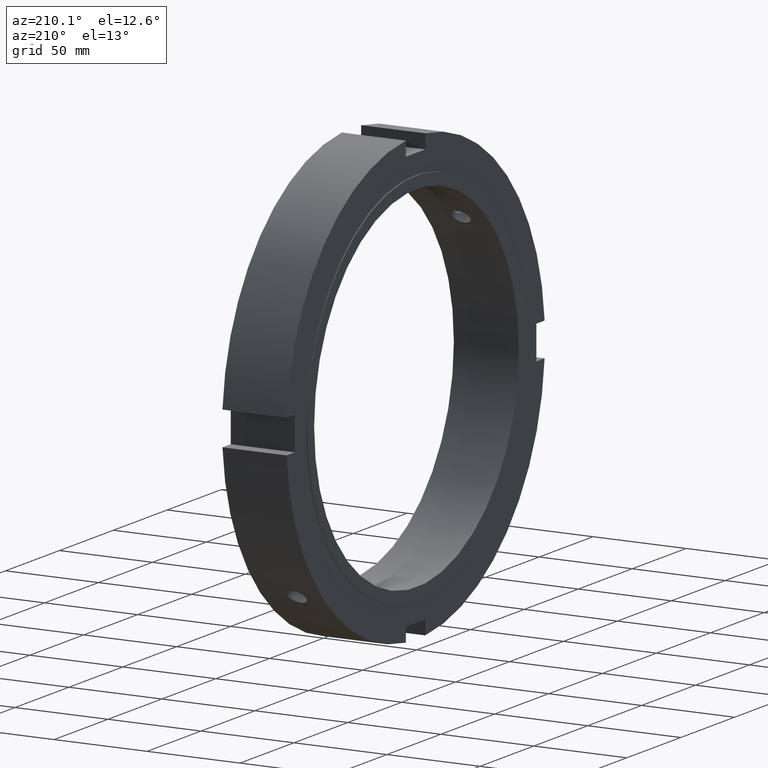
[diagram: clean part render]
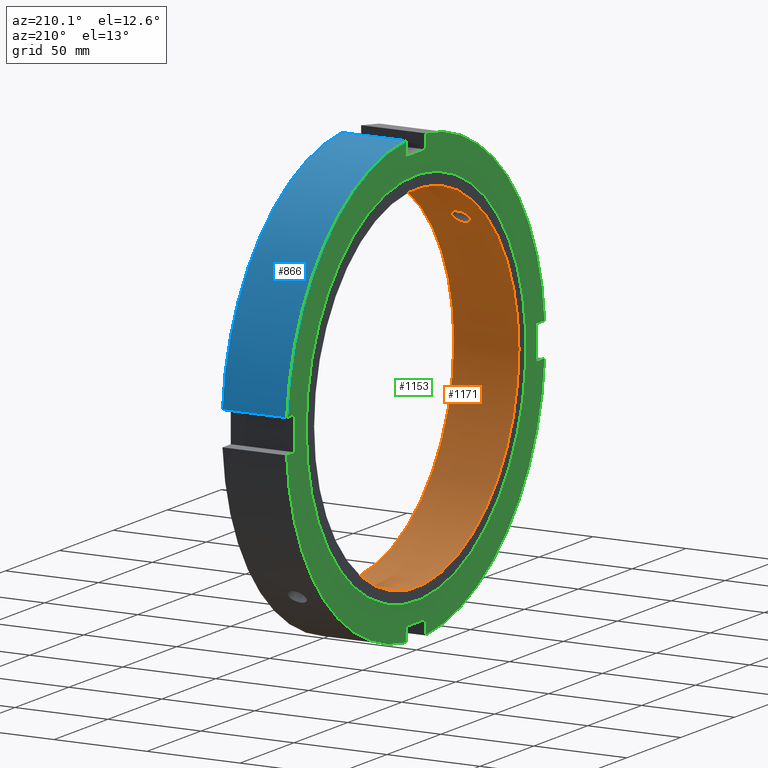
[diagram: same view with three faces highlighted in distinct colors, each labeled with its STEP entity id]
A machine part, auxiliary view with three faces highlighted in distinct colors.
Their STEP definitions:

[orange] entity #1171 — the highlighted cylindrical surface (bore or boss wall) has radius 95 mm, axis along (1, 0, 0).
#256=CARTESIAN_POINT('',(14.999999999999979,-70.483455965770062,63.695230866379255));
#257=VERTEX_POINT('',#256);
#258=CARTESIAN_POINT('',(14.999999999999979,-70.483455965770048,63.695230866379269));
#259=CARTESIAN_POINT('',(15.60280886897484,-70.483455965770048,63.695230866379269));
#260=CARTESIAN_POINT('',(16.245727713137242,-70.402735111982068,63.784912148055348));
#261=CARTESIAN_POINT('',(17.428318149963072,-70.072518583995603,64.147503990508682));
#262=CARTESIAN_POINT('',(17.967998441527296,-69.822793832356126,64.420177481466368));
#263=CARTESIAN_POINT('',(18.820226563994112,-69.241721275644636,65.044337493783232));
#264=CARTESIAN_POINT('',(19.189617973987897,-68.871577627804783,65.437417094174918));
#265=CARTESIAN_POINT('',(19.679507531872932,-68.051532852517468,66.289807944514266));
#266=CARTESIAN_POINT('',(19.799999999999983,-67.601394357834096,66.748894067609939));
#267=CARTESIAN_POINT('',(19.799999999999972,-66.748894067609839,67.601394357834167));
#268=CARTESIAN_POINT('',(19.679507531872925,-66.289807944514195,68.051532852517553));
#269=CARTESIAN_POINT('',(19.189617973987886,-65.437417094174819,68.871577627804882));
#270=CARTESIAN_POINT('',(18.820226563994108,-65.044337493783146,69.241721275644721));
#271=CARTESIAN_POINT('',(17.967998441527293,-64.420177481466283,69.822793832356197));
#272=CARTESIAN_POINT('',(17.428318149963069,-64.147503990508611,70.072518583995674));
#273=CARTESIAN_POINT('',(16.245727713137242,-63.784912148055277,70.402735111982139));
#274=CARTESIAN_POINT('',(15.60280886897484,-63.695230866379191,70.483455965770119));
#275=CARTESIAN_POINT('',(14.397191131025121,-63.695230866379191,70.483455965770119));
#276=CARTESIAN_POINT('',(13.754272286862717,-63.784912148055277,70.402735111982139));
#277=CARTESIAN_POINT('',(12.571681850036896,-64.147503990508611,70.072518583995674));
#278=CARTESIAN_POINT('',(12.032001558472667,-64.420177481466268,69.822793832356211));
#279=CARTESIAN_POINT('',(11.179773436005842,-65.044337493783132,69.241721275644736));
#280=CARTESIAN_POINT('',(10.810382026012073,-65.437417094174819,68.871577627804882));
#281=CARTESIAN_POINT('',(10.320492468127027,-66.289807944514195,68.051532852517539));
#282=CARTESIAN_POINT('',(10.199999999999982,-66.748894067609839,67.601394357834167));
#283=CARTESIAN_POINT('',(10.199999999999974,-67.601394357834096,66.748894067609939));
#284=CARTESIAN_POINT('',(10.320492468127023,-68.051532852517468,66.289807944514266));
#285=CARTESIAN_POINT('',(10.810382026012061,-68.871577627804783,65.437417094174904));
#286=CARTESIAN_POINT('',(11.179773436005844,-69.241721275644636,65.044337493783232));
#287=CARTESIAN_POINT('',(12.032001558472661,-69.822793832356126,64.420177481466368));
#288=CARTESIAN_POINT('',(12.571681850036882,-70.072518583995603,64.147503990508682));
#289=CARTESIAN_POINT('',(13.754272286862715,-70.402735111982068,63.784912148055348));
#290=CARTESIAN_POINT('',(14.397191131025115,-70.483455965770048,63.695230866379269));
#291=CARTESIAN_POINT('',(14.999999999999979,-70.483455965770048,63.695230866379269));
#292=B_SPLINE_CURVE_WITH_KNOTS('',3,(#258,#259,#260,#261,#262,#263,#264,#265,#266,#267,#268,#269,#270,#271,#272,#273,#274,#275,#276,#277,#278,#279,#280,#281,#282,#283,#284,#285,#286,#287,#288,#289,#290,#291),.UNSPECIFIED.,.T.,.U.,(4,2,2,2,2,2,2,2,2,2,2,2,2,2,2,2,4),(0.0,0.180842660692459,0.361685321384918,0.542527942239237,0.723370563093557,0.904213183947876,1.085055804802195,1.265898465494653,1.446741126187112,1.627583786879569,1.808426447572027,1.989269068426347,2.170111689280668,2.350954310134987,2.531796930989306,2.712639591681765,2.893482252374224),.UNSPECIFIED.);
#293=EDGE_CURVE('',#257,#257,#292,.T.);
#486=CARTESIAN_POINT('',(14.999999999999979,63.695230866379234,-70.483455965770091));
#487=VERTEX_POINT('',#486);
#488=CARTESIAN_POINT('',(14.999999999999979,63.695230866379227,-70.483455965770091));
#489=CARTESIAN_POINT('',(14.397191131025121,63.695230866379227,-70.483455965770091));
#490=CARTESIAN_POINT('',(13.754272286862728,63.784912148055291,-70.402735111982111));
#491=CARTESIAN_POINT('',(12.571681850036907,64.147503990508625,-70.072518583995645));
#492=CARTESIAN_POINT('',(12.032001558472668,64.420177481466283,-69.822793832356197));
#493=CARTESIAN_POINT('',(11.179773436005842,65.044337493783161,-69.241721275644721));
#494=CARTESIAN_POINT('',(10.810382026012078,65.437417094174833,-68.871577627804839));
#495=CARTESIAN_POINT('',(10.320492468127028,66.289807944514209,-68.051532852517511));
#496=CARTESIAN_POINT('',(10.199999999999982,66.748894067609882,-67.601394357834138));
#497=CARTESIAN_POINT('',(10.199999999999974,67.601394357834138,-66.748894067609896));
#498=CARTESIAN_POINT('',(10.320492468127023,68.051532852517511,-66.289807944514237));
#499=CARTESIAN_POINT('',(10.810382026012061,68.871577627804825,-65.437417094174876));
#500=CARTESIAN_POINT('',(11.179773436005844,69.241721275644679,-65.044337493783203));
#501=CARTESIAN_POINT('',(12.032001558472661,69.822793832356155,-64.420177481466339));
#502=CARTESIAN_POINT('',(12.57168185003688,70.072518583995631,-64.147503990508625));
#503=CARTESIAN_POINT('',(13.754272286862712,70.402735111982096,-63.784912148055298));
#504=CARTESIAN_POINT('',(14.397191131025115,70.483455965770091,-63.695230866379219));
#505=CARTESIAN_POINT('',(15.60280886897484,70.483455965770091,-63.695230866379219));
#506=CARTESIAN_POINT('',(16.245727713137242,70.402735111982096,-63.784912148055298));
#507=CARTESIAN_POINT('',(17.428318149963076,70.072518583995631,-64.147503990508625));
#508=CARTESIAN_POINT('',(17.967998441527296,69.822793832356155,-64.420177481466339));
#509=CARTESIAN_POINT('',(18.820226563994112,69.241721275644679,-65.044337493783203));
#510=CARTESIAN_POINT('',(19.189617973987897,68.871577627804825,-65.437417094174876));
#511=CARTESIAN_POINT('',(19.679507531872932,68.051532852517511,-66.289807944514237));
#512=CARTESIAN_POINT('',(19.799999999999983,67.601394357834138,-66.748894067609896));
#513=CARTESIAN_POINT('',(19.799999999999976,66.748894067609882,-67.601394357834153));
#514=CARTESIAN_POINT('',(19.679507531872925,66.289807944514209,-68.051532852517511));
#515=CARTESIAN_POINT('',(19.189617973987875,65.437417094174833,-68.871577627804839));
#516=CARTESIAN_POINT('',(18.820226563994112,65.044337493783161,-69.241721275644721));
#517=CARTESIAN_POINT('',(17.967998441527286,64.420177481466297,-69.822793832356197));
#518=CARTESIAN_POINT('',(17.428318149963054,64.147503990508625,-70.072518583995645));
#519=CARTESIAN_POINT('',(16.245727713137232,63.784912148055291,-70.402735111982111));
#520=CARTESIAN_POINT('',(15.602808868974838,63.695230866379227,-70.483455965770091));
#521=CARTESIAN_POINT('',(14.999999999999979,63.695230866379227,-70.483455965770091));
#522=B_SPLINE_CURVE_WITH_KNOTS('',3,(#488,#489,#490,#491,#492,#493,#494,#495,#496,#497,#498,#499,#500,#501,#502,#503,#504,#505,#506,#507,#508,#509,#510,#511,#512,#513,#514,#515,#516,#517,#518,#519,#520,#521),.UNSPECIFIED.,.T.,.U.,(4,2,2,2,2,2,2,2,2,2,2,2,2,2,2,2,4),(0.0,0.180842660692458,0.361685321384915,0.542527942239237,0.723370563093558,0.904213183947878,1.085055804802197,1.265898465494656,1.446741126187115,1.627583786879574,1.808426447572033,1.989269068426352,2.170111689280672,2.350954310134993,2.531796930989315,2.712639591681772,2.89348225237423),.UNSPECIFIED.);
#523=EDGE_CURVE('',#487,#487,#522,.T.);
#1002=CARTESIAN_POINT('',(34.999999999999979,95.0,0.0));
#1003=VERTEX_POINT('',#1002);
#1004=CARTESIAN_POINT('',(34.999999999999979,0.0,0.0));
#1005=DIRECTION('',(1.0,0.0,0.0));
#1006=DIRECTION('',(0.0,1.0,0.0));
#1007=AXIS2_PLACEMENT_3D('',#1004,#1005,#1006);
#1008=CIRCLE('',#1007,95.0);
#1009=EDGE_CURVE('',#1003,#1003,#1008,.T.);
#1095=CARTESIAN_POINT('',(-2.819171E-014,95.0,0.0));
#1096=VERTEX_POINT('',#1095);
#1097=CARTESIAN_POINT('',(-2.818926E-014,0.0,0.0));
#1098=DIRECTION('',(1.0,0.0,0.0));
#1099=DIRECTION('',(0.0,1.0,0.0));
#1100=AXIS2_PLACEMENT_3D('',#1097,#1098,#1099);
#1101=CIRCLE('',#1100,95.0);
#1102=EDGE_CURVE('',#1096,#1096,#1101,.T.);
#1154=CARTESIAN_POINT('',(17.499999999999975,0.0,0.0));
#1155=DIRECTION('',(1.0,0.0,0.0));
#1156=DIRECTION('',(0.0,1.0,0.0));
#1157=AXIS2_PLACEMENT_3D('',#1154,#1155,#1156);
#1158=CYLINDRICAL_SURFACE('',#1157,95.0);
#1159=ORIENTED_EDGE('',*,*,#1102,.F.);
#1160=EDGE_LOOP('',(#1159));
#1161=FACE_OUTER_BOUND('',#1160,.T.);
#1162=ORIENTED_EDGE('',*,*,#293,.T.);
#1163=EDGE_LOOP('',(#1162));
#1164=FACE_BOUND('',#1163,.T.);
#1165=ORIENTED_EDGE('',*,*,#523,.T.);
#1166=EDGE_LOOP('',(#1165));
#1167=FACE_BOUND('',#1166,.T.);
#1168=ORIENTED_EDGE('',*,*,#1009,.T.);
#1169=EDGE_LOOP('',(#1168));
#1170=FACE_BOUND('',#1169,.T.);
#1171=ADVANCED_FACE('',(#1161,#1164,#1167,#1170),#1158,.F.);

[blue] entity #866 — the highlighted cylindrical surface (partial cylindrical patch) has radius 120 mm, axis along (1, 0, 0).
#739=CARTESIAN_POINT('',(0.499999999999967,9.000000000000002,119.66202405107479));
#740=VERTEX_POINT('',#739);
#755=CARTESIAN_POINT('',(34.999999999999972,9.000000000000002,119.66202405107479));
#756=VERTEX_POINT('',#755);
#763=CARTESIAN_POINT('',(0.499999999999968,9.000000000000002,119.66202405107479));
#764=DIRECTION('',(1.0,0.0,0.0));
#765=VECTOR('',#764,34.5);
#766=LINE('',#763,#765);
#767=EDGE_CURVE('',#740,#756,#766,.T.);
#834=CARTESIAN_POINT('',(17.749999999999972,0.0,0.0));
#835=DIRECTION('',(1.0,0.0,0.0));
#836=DIRECTION('',(0.0,1.0,0.0));
#837=AXIS2_PLACEMENT_3D('',#834,#835,#836);
#838=CYLINDRICAL_SURFACE('',#837,120.0);
#839=ORIENTED_EDGE('',*,*,#767,.T.);
#840=CARTESIAN_POINT('',(34.999999999999972,119.66202405107479,8.999999999999993));
#841=VERTEX_POINT('',#840);
#842=CARTESIAN_POINT('',(34.999999999999972,0.0,0.0));
#843=DIRECTION('',(1.0,0.0,0.0));
#844=DIRECTION('',(0.0,1.0,0.0));
#845=AXIS2_PLACEMENT_3D('',#842,#843,#844);
#846=CIRCLE('',#845,120.0);
#847=EDGE_CURVE('',#841,#756,#846,.T.);
#848=ORIENTED_EDGE('',*,*,#847,.F.);
#849=CARTESIAN_POINT('',(0.499999999999967,119.66202405107479,8.999999999999993));
#850=VERTEX_POINT('',#849);
#851=CARTESIAN_POINT('',(34.999999999999972,119.66202405107479,8.999999999999993));
#852=DIRECTION('',(-1.0,0.0,0.0));
#853=VECTOR('',#852,34.5);
#854=LINE('',#851,#853);
#855=EDGE_CURVE('',#841,#850,#854,.T.);
#856=ORIENTED_EDGE('',*,*,#855,.T.);
#857=CARTESIAN_POINT('',(0.499999999999967,0.0,0.0));
#858=DIRECTION('',(1.0,0.0,0.0));
#859=DIRECTION('',(0.0,1.0,0.0));
#860=AXIS2_PLACEMENT_3D('',#857,#858,#859);
#861=CIRCLE('',#860,120.0);
#862=EDGE_CURVE('',#850,#740,#861,.T.);
#863=ORIENTED_EDGE('',*,*,#862,.T.);
#864=EDGE_LOOP('',(#839,#848,#856,#863));
#865=FACE_OUTER_BOUND('',#864,.T.);
#866=ADVANCED_FACE('',(#865),#838,.T.);

[green] entity #1153 — the highlighted planar face has unit normal (-1, 0, 0).
#533=CARTESIAN_POINT('',(0.499999999999972,-9.000000000000014,-112.0));
#534=VERTEX_POINT('',#533);
#535=CARTESIAN_POINT('',(0.499999999999967,-9.000000000000016,-119.66202405107479));
#536=VERTEX_POINT('',#535);
#537=CARTESIAN_POINT('',(0.499999999999969,-9.000000000000023,-112.0));
#538=DIRECTION('',(0.0,0.0,-1.0));
#539=VECTOR('',#538,7.662024051074781);
#540=LINE('',#537,#539);
#541=EDGE_CURVE('',#534,#536,#540,.T.);
#573=CARTESIAN_POINT('',(0.499999999999967,8.999999999999972,-119.66202405107479));
#574=VERTEX_POINT('',#573);
#575=CARTESIAN_POINT('',(0.499999999999972,8.999999999999973,-112.0));
#576=VERTEX_POINT('',#575);
#577=CARTESIAN_POINT('',(0.499999999999969,8.999999999999966,-119.66202405107479));
#578=DIRECTION('',(0.0,0.0,1.0));
#579=VECTOR('',#578,7.662024051074795);
#580=LINE('',#577,#579);
#581=EDGE_CURVE('',#574,#576,#580,.T.);
#613=CARTESIAN_POINT('',(0.499999999999969,8.999999999999979,-111.99999999999999));
#614=DIRECTION('',(0.0,-1.0,0.0));
#615=VECTOR('',#614,17.999999999999993);
#616=LINE('',#613,#615);
#617=EDGE_CURVE('',#576,#534,#616,.T.);
#635=CARTESIAN_POINT('',(0.499999999999972,-112.0,9.000000000000007));
#636=VERTEX_POINT('',#635);
#637=CARTESIAN_POINT('',(0.499999999999967,-119.66202405107479,9.000000000000009));
#638=VERTEX_POINT('',#637);
#639=CARTESIAN_POINT('',(0.499999999999969,-112.0,9.000000000000007));
#640=DIRECTION('',(0.0,-1.0,0.0));
#641=VECTOR('',#640,7.662024051074795);
#642=LINE('',#639,#641);
#643=EDGE_CURVE('',#636,#638,#642,.T.);
#675=CARTESIAN_POINT('',(0.499999999999967,-119.66202405107479,-8.999999999999979));
#676=VERTEX_POINT('',#675);
#677=CARTESIAN_POINT('',(0.499999999999972,-112.0,-8.999999999999981));
#678=VERTEX_POINT('',#677);
#679=CARTESIAN_POINT('',(0.499999999999969,-119.66202405107478,-8.999999999999979));
#680=DIRECTION('',(0.0,1.0,0.0));
#681=VECTOR('',#680,7.662024051074795);
#682=LINE('',#679,#681);
#683=EDGE_CURVE('',#676,#678,#682,.T.);
#715=CARTESIAN_POINT('',(0.499999999999969,-112.0,-8.999999999999979));
#716=DIRECTION('',(0.0,0.0,1.0));
#717=VECTOR('',#716,17.999999999999986);
#718=LINE('',#715,#717);
#719=EDGE_CURVE('',#678,#636,#718,.T.);
#737=CARTESIAN_POINT('',(0.499999999999972,9.0,112.0));
#738=VERTEX_POINT('',#737);
#739=CARTESIAN_POINT('',(0.499999999999967,9.000000000000002,119.66202405107479));
#740=VERTEX_POINT('',#739);
#741=CARTESIAN_POINT('',(0.499999999999969,9.000000000000007,112.0));
#742=DIRECTION('',(0.0,0.0,1.0));
#743=VECTOR('',#742,7.662024051074795);
#744=LINE('',#741,#743);
#745=EDGE_CURVE('',#738,#740,#744,.T.);
#777=CARTESIAN_POINT('',(0.499999999999967,-8.999999999999986,119.66202405107479));
#778=VERTEX_POINT('',#777);
#779=CARTESIAN_POINT('',(0.499999999999972,-8.999999999999988,112.0));
#780=VERTEX_POINT('',#779);
#781=CARTESIAN_POINT('',(0.499999999999969,-8.999999999999982,119.66202405107479));
#782=DIRECTION('',(0.0,0.0,-1.0));
#783=VECTOR('',#782,7.662024051074795);
#784=LINE('',#781,#783);
#785=EDGE_CURVE('',#778,#780,#784,.T.);
#817=CARTESIAN_POINT('',(0.499999999999969,-8.999999999999986,112.0));
#818=DIRECTION('',(0.0,1.0,0.0));
#819=VECTOR('',#818,17.999999999999986);
#820=LINE('',#817,#819);
#821=EDGE_CURVE('',#780,#738,#820,.T.);
#849=CARTESIAN_POINT('',(0.499999999999967,119.66202405107479,8.999999999999993));
#850=VERTEX_POINT('',#849);
#857=CARTESIAN_POINT('',(0.499999999999967,0.0,0.0));
#858=DIRECTION('',(1.0,0.0,0.0));
#859=DIRECTION('',(0.0,1.0,0.0));
#860=AXIS2_PLACEMENT_3D('',#857,#858,#859);
#861=CIRCLE('',#860,120.0);
#862=EDGE_CURVE('',#850,#740,#861,.T.);
#881=CARTESIAN_POINT('',(0.499999999999967,0.0,0.0));
#882=DIRECTION('',(1.0,0.0,0.0));
#883=DIRECTION('',(0.0,1.0,0.0));
#884=AXIS2_PLACEMENT_3D('',#881,#882,#883);
#885=CIRCLE('',#884,120.0);
#886=EDGE_CURVE('',#778,#638,#885,.T.);
#900=CARTESIAN_POINT('',(0.499999999999967,119.66202405107479,-8.999999999999993));
#901=VERTEX_POINT('',#900);
#902=CARTESIAN_POINT('',(0.499999999999967,0.0,0.0));
#903=DIRECTION('',(1.0,0.0,0.0));
#904=DIRECTION('',(0.0,1.0,0.0));
#905=AXIS2_PLACEMENT_3D('',#902,#903,#904);
#906=CIRCLE('',#905,120.0);
#907=EDGE_CURVE('',#574,#901,#906,.T.);
#944=CARTESIAN_POINT('',(0.499999999999967,0.0,0.0));
#945=DIRECTION('',(1.0,0.0,0.0));
#946=DIRECTION('',(0.0,1.0,0.0));
#947=AXIS2_PLACEMENT_3D('',#944,#945,#946);
#948=CIRCLE('',#947,120.0);
#949=EDGE_CURVE('',#676,#536,#948,.T.);
#1019=CARTESIAN_POINT('',(0.499999999999972,112.0,-8.999999999999993));
#1020=VERTEX_POINT('',#1019);
#1021=CARTESIAN_POINT('',(0.499999999999969,112.0,-8.999999999999993));
#1022=DIRECTION('',(0.0,1.0,0.0));
#1023=VECTOR('',#1022,7.662024051074795);
#1024=LINE('',#1021,#1023);
#1025=EDGE_CURVE('',#1020,#901,#1024,.T.);
#1043=CARTESIAN_POINT('',(0.499999999999972,112.0,8.999999999999993));
#1044=VERTEX_POINT('',#1043);
#1045=CARTESIAN_POINT('',(0.499999999999969,119.66202405107479,8.999999999999993));
#1046=DIRECTION('',(0.0,-1.0,0.0));
#1047=VECTOR('',#1046,7.662024051074795);
#1048=LINE('',#1045,#1047);
#1049=EDGE_CURVE('',#850,#1044,#1048,.T.);
#1067=CARTESIAN_POINT('',(0.499999999999969,112.0,8.999999999999993));
#1068=DIRECTION('',(0.0,0.0,-1.0));
#1069=VECTOR('',#1068,17.999999999999986);
#1070=LINE('',#1067,#1069);
#1071=EDGE_CURVE('',#1044,#1020,#1070,.T.);
#1112=CARTESIAN_POINT('',(0.499999999999972,101.5,0.0));
#1113=VERTEX_POINT('',#1112);
#1114=CARTESIAN_POINT('',(0.499999999999972,0.0,0.0));
#1115=DIRECTION('',(1.0,0.0,0.0));
#1116=DIRECTION('',(0.0,1.0,0.0));
#1117=AXIS2_PLACEMENT_3D('',#1114,#1115,#1116);
#1118=CIRCLE('',#1117,101.5);
#1119=EDGE_CURVE('',#1113,#1113,#1118,.T.);
#1127=CARTESIAN_POINT('',(0.499999999999969,110.75,0.0));
#1128=DIRECTION('',(-1.0,0.0,0.0));
#1129=DIRECTION('',(0.0,0.0,1.0));
#1130=AXIS2_PLACEMENT_3D('',#1127,#1128,#1129);
#1131=PLANE('',#1130);
#1132=ORIENTED_EDGE('',*,*,#541,.T.);
#1133=ORIENTED_EDGE('',*,*,#949,.F.);
#1134=ORIENTED_EDGE('',*,*,#683,.T.);
#1135=ORIENTED_EDGE('',*,*,#719,.T.);
#1136=ORIENTED_EDGE('',*,*,#643,.T.);
#1137=ORIENTED_EDGE('',*,*,#886,.F.);
#1138=ORIENTED_EDGE('',*,*,#785,.T.);
#1139=ORIENTED_EDGE('',*,*,#821,.T.);
#1140=ORIENTED_EDGE('',*,*,#745,.T.);
#1141=ORIENTED_EDGE('',*,*,#862,.F.);
#1142=ORIENTED_EDGE('',*,*,#1049,.T.);
#1143=ORIENTED_EDGE('',*,*,#1071,.T.);
#1144=ORIENTED_EDGE('',*,*,#1025,.T.);
#1145=ORIENTED_EDGE('',*,*,#907,.F.);
#1146=ORIENTED_EDGE('',*,*,#581,.T.);
#1147=ORIENTED_EDGE('',*,*,#617,.T.);
#1148=EDGE_LOOP('',(#1132,#1133,#1134,#1135,#1136,#1137,#1138,#1139,#1140,#1141,#1142,#1143,#1144,#1145,#1146,#1147));
#1149=FACE_OUTER_BOUND('',#1148,.T.);
#1150=ORIENTED_EDGE('',*,*,#1119,.T.);
#1151=EDGE_LOOP('',(#1150));
#1152=FACE_BOUND('',#1151,.T.);
#1153=ADVANCED_FACE('',(#1149,#1152),#1131,.T.);